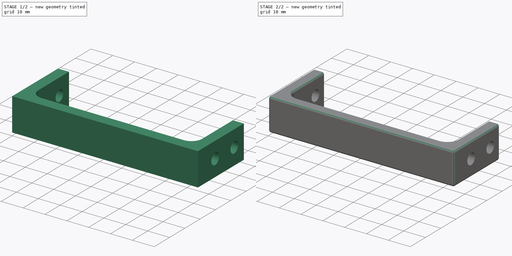
[diagram: build sequence overview — one tinted view per stage of 2, left to right]
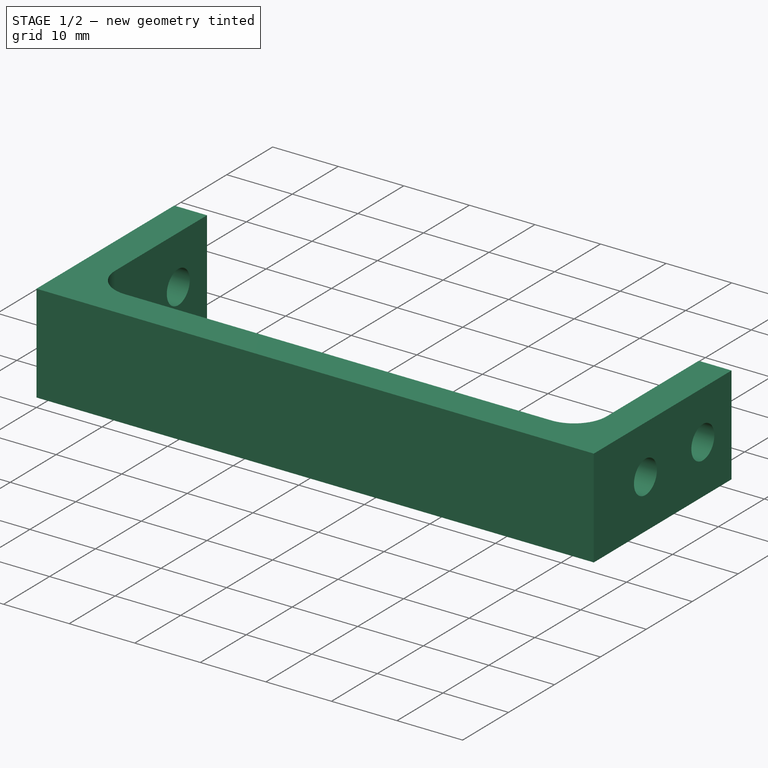
[diagram: stage 1 of 2 — iso view after this stage's code; geometry added in this stage tinted green]
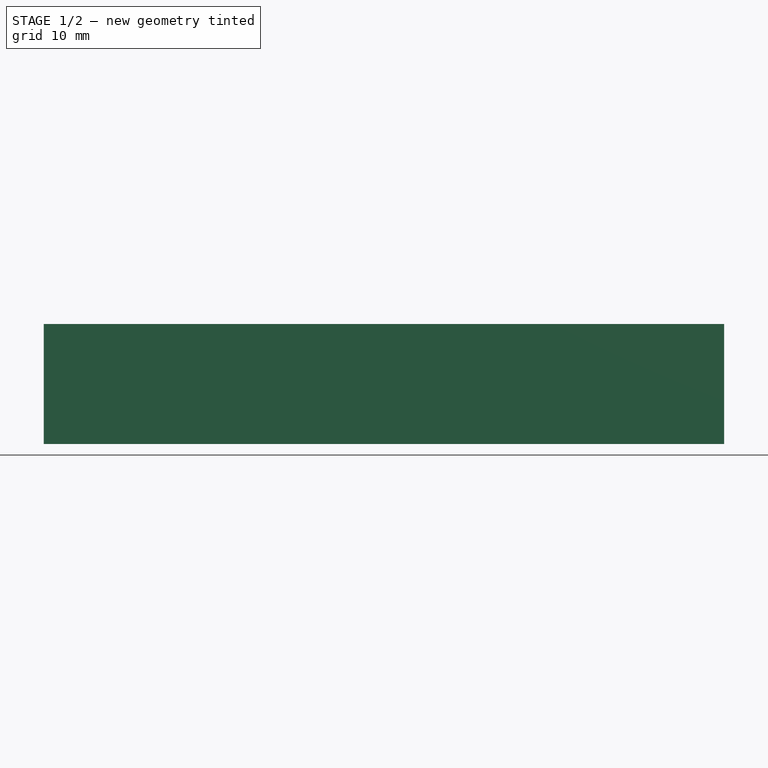
[diagram: stage 1 of 2 — front view after this stage's code; geometry added in this stage tinted green]
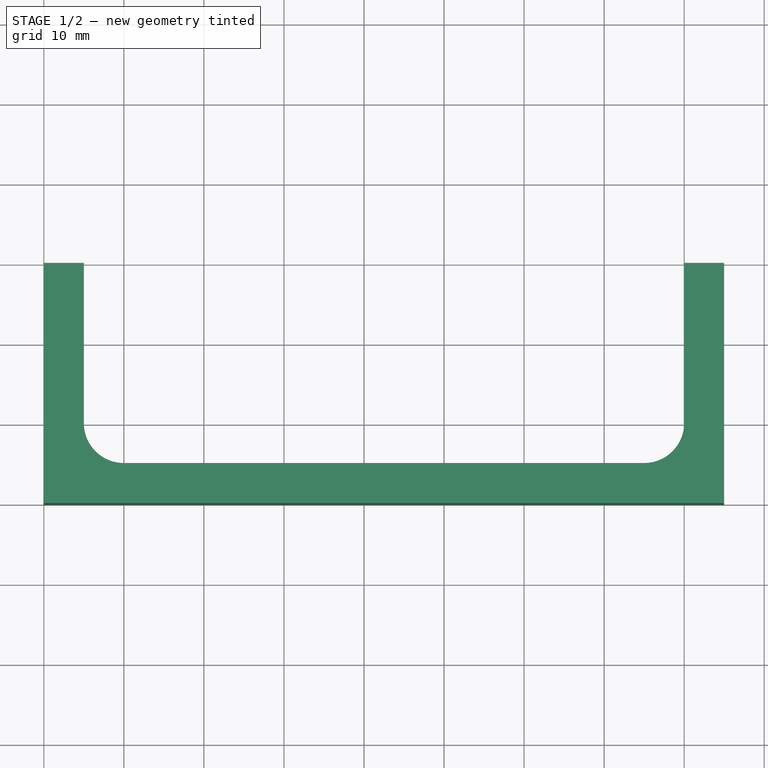
[diagram: stage 1 of 2 — top view after this stage's code; geometry added in this stage tinted green]
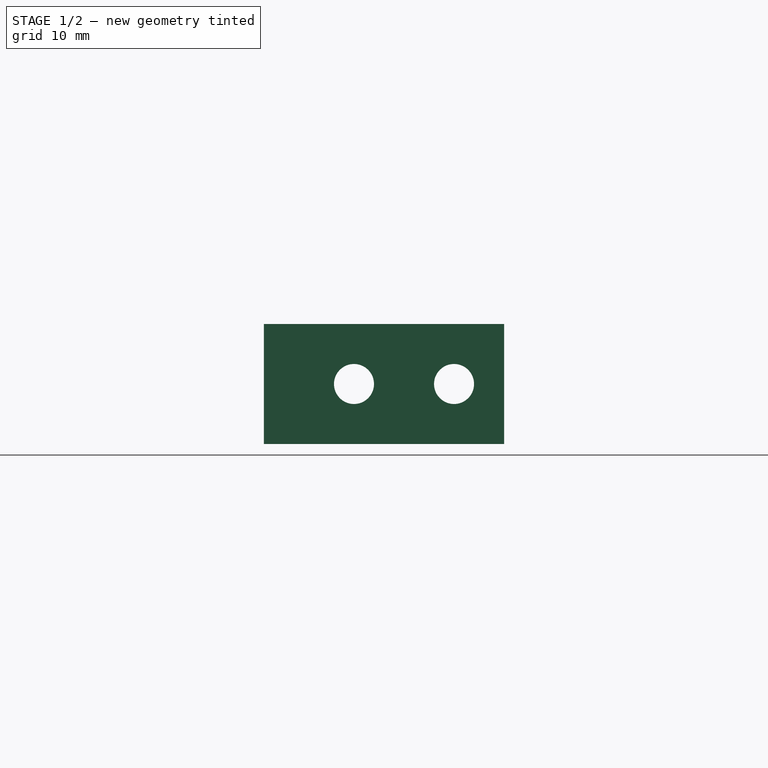
[diagram: stage 1 of 2 — right view after this stage's code; geometry added in this stage tinted green]
FCSTD DOCUMENT  (FreeCAD 0.20R29177 +426 (Git))
Label: ax1000holder
License: All rights reserved
LicenseURL: http://en.wikipedia.org/wiki/All_rights_reserved
objects: Sketcher::SketchObject×2, PartDesign::Pad×1, Spreadsheet::Sheet×1, PartDesign::Pocket×1, PartDesign::Fillet×1, PartDesign::Body×1
note: 9 computed .brp shape members not serialized (recipe doc carries the construction recipe); baked Part::Feature solids carry a one-line shape summary decoded from their .brp

FEATURE [Sketcher::SketchObject] Sketch
  FullyConstrained = true
  MapMode = 5
  Support = -> [XY_Plane]
  expr: Constraints[16] = Spreadsheet.handLen
  expr: Constraints[19] = Spreadsheet.thickness
  expr: Constraints[20] = Spreadsheet.cornerR
  expr: Constraints[21] = Spreadsheet.cornerR
  expr: Constraints[26] = Spreadsheet.totalSpacing + Spreadsheet.thickness
  expr: Constraints[31] = Spreadsheet.thickness
  sketch-geometry (12):
    g0: LineSegment StartX=85 StartY=30 StartZ=0 EndX=85 EndY=0 EndZ=0
    g1: LineSegment StartX=85 StartY=0 StartZ=0 EndX=0 EndY=0 EndZ=0
    g2: LineSegment StartX=0 StartY=0 StartZ=0 EndX=0 EndY=30 EndZ=0
    g3: LineSegment StartX=0 StartY=30 StartZ=0 EndX=5 EndY=30 EndZ=0
    g4: LineSegment StartX=5 StartY=30 StartZ=0 EndX=5 EndY=10 EndZ=0
    g5: LineSegment StartX=10 StartY=5 StartZ=0 EndX=75 EndY=5 EndZ=0
    g6: LineSegment StartX=80 StartY=10 StartZ=0 EndX=80 EndY=30 EndZ=0
    g7: LineSegment StartX=80 StartY=30 StartZ=0 EndX=85 EndY=30 EndZ=0
    g8: ArcOfCircle CenterX=10 CenterY=10 CenterZ=0 NormalX=0 NormalY=0 NormalZ=1 AngleXU=0 Radius=5 StartAngle=3.14159 EndAngle=4.71239
    g9: ArcOfCircle CenterX=75 CenterY=10 CenterZ=0 NormalX=0 NormalY=0 NormalZ=1 AngleXU=0 Radius=5 StartAngle=4.71239 EndAngle=6.28319
    g10: LineSegment StartX=5 StartY=10 StartZ=0 EndX=5 EndY=5 EndZ=0
    g11: LineSegment StartX=10 StartY=5 StartZ=0 EndX=5 EndY=5 EndZ=0
  constraints (33):
    c: Coincident(g0,g1)
    c: Coincident(g1,g2)
    c: Horizontal(g1)
    c: Vertical(g0)
    c: Vertical(g2)
    c: PointOnObject(g2,g-2)
    c: PointOnObject(g0,g-1)
    c: Coincident(g3,g2)
    c: Horizontal(g3)
    c: Coincident(g4,g3)
    c: Vertical(g4)
    c: Horizontal(g5)
    c: Vertical(g6)
    c: Coincident(g7,g6)
    c: Horizontal(g7)
    c: Coincident(g7,g0)
    c: DistanceY(g2,g2) = 30
    c: Equal(g0,g2)
    c: Equal(g3,g7)
    c: DistanceX(g3,g3) = 5
    c: Radius(g8) = 5
    c: Radius(g9) = 5
    c: Tangent(g4,g8) = -1.5708
    c: Tangent(g5,g8) = -1.5708
    c: Tangent(g5,g9) = -1.5708
    c: Tangent(g6,g9) = -1.5708
    c: DistanceX(g1,g1) = 85
    c: Coincident(g10,g4)
    c: Vertical(g10)
    c: Coincident(g11,g10)
    c: Coincident(g5,g11)
    c: DistanceY(g1,g10) = 5
    c: Horizontal(g11)
FEATURE [PartDesign::Pad] Pad
  Direction = (0,0,1)
  Length = 15
  Length2 = 10
  Profile = -> Sketch
  ReferenceAxis = -> Sketch [N_Axis]
  Type = 0
  expr: Length = Spreadsheet.pad
FEATURE [Spreadsheet::Sheet] Spreadsheet
  cells = A2=thickness; B2(thickness)=5; A3=totalSpacing; B3(totalSpacing)=80; A4=handLen; B4(handLen)=30; A5=pad; B5(pad)=15; A8=screwDist; B8(screwDist)==(handLen - thickness) / 2; A9=toFirstScrew; B9(toFirstScrew)==(handLen - screwDist) / 2 + thickness / 2; A12=screwHoleR; B12(screwHoleR)==5 / 2; A13=cornerR; B13(cornerR)=5
FEATURE [Sketcher::SketchObject] Sketch001
  FullyConstrained = true
  MapMode = 5
  Placement = pos=(0,0,0) rot=(0.57735,0.57735,0.57735;2.0944rad)
  Support = -> [YZ_Plane]
  expr: Constraints[1] = Spreadsheet.pad / 2
  expr: Constraints[2] = (Spreadsheet.handLen - Spreadsheet.thickness) / 2
  expr: Constraints[3] = Spreadsheet.toFirstScrew
  expr: Constraints[6] = Spreadsheet.screwHoleR
  expr: Constraints[7] = Spreadsheet.screwHoleR
  sketch-geometry (3):
    g0: LineSegment StartX=11.25 StartY=7.5 StartZ=0 EndX=23.75 EndY=7.5 EndZ=0
    g1: Circle CenterX=11.25 CenterY=7.5 CenterZ=0 NormalX=0 NormalY=0 NormalZ=1 AngleXU=0 Radius=2.5
    g2: Circle CenterX=23.75 CenterY=7.5 CenterZ=0 NormalX=0 NormalY=0 NormalZ=1 AngleXU=0 Radius=2.5
  constraints (8):
    c: Horizontal(g0)
    c: DistanceY(g-1,g0) = 7.5
    c: DistanceX(g0,g0) = 12.5
    c: DistanceX(g-1,g0) = 11.25
    c: Coincident(g1,g0)
    c: Coincident(g2,g0)
    c: Radius(g1) = 2.5
    c: Radius(g2) = 2.5
FEATURE [PartDesign::Pocket] Pocket
  BaseFeature = -> Pad
  Direction = (-1,2e-16,-3e-16)
  Length = 5
  Length2 = 5
  Midplane = true
  Profile = -> Sketch001
  ReferenceAxis = -> Sketch001 [N_Axis]
  Type = 1
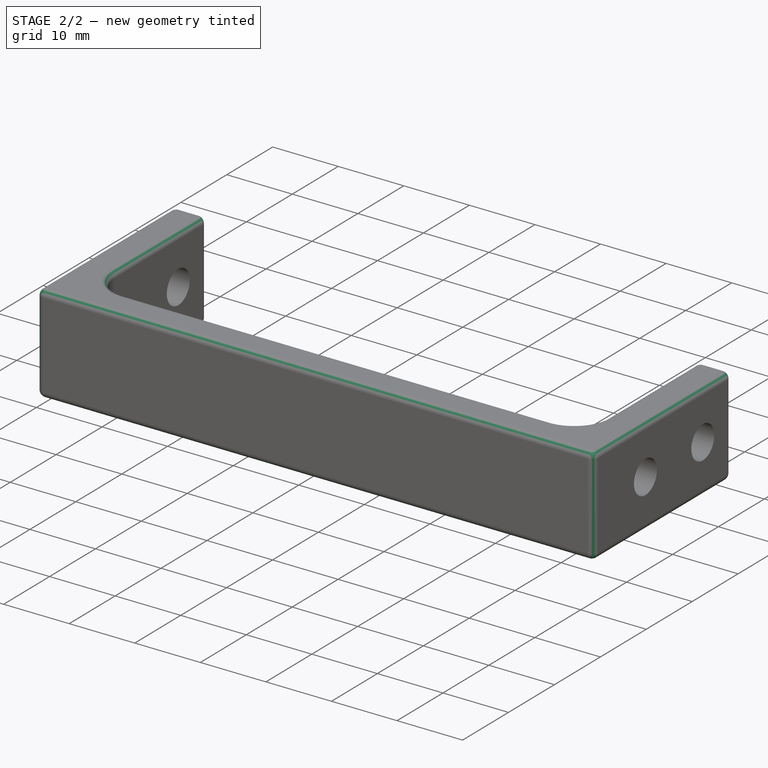
[diagram: stage 2 of 2 — iso view after this stage's code; geometry added in this stage tinted green]
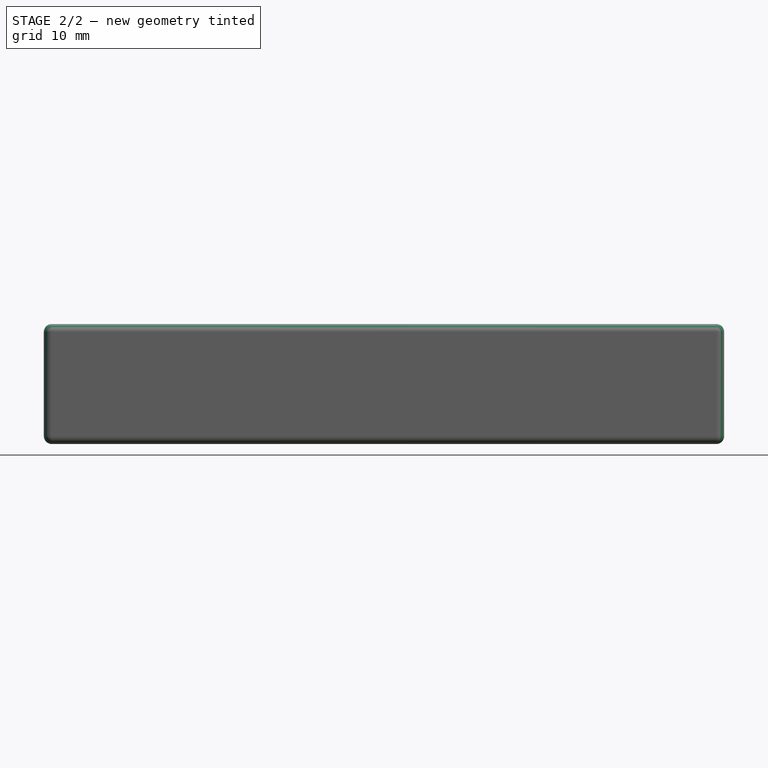
[diagram: stage 2 of 2 — front view after this stage's code; geometry added in this stage tinted green]
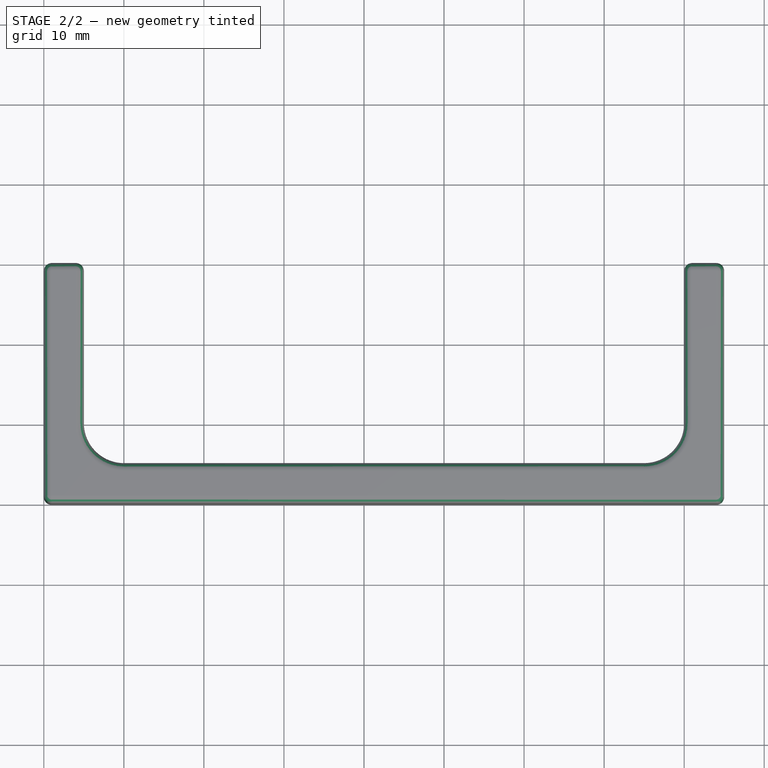
[diagram: stage 2 of 2 — top view after this stage's code; geometry added in this stage tinted green]
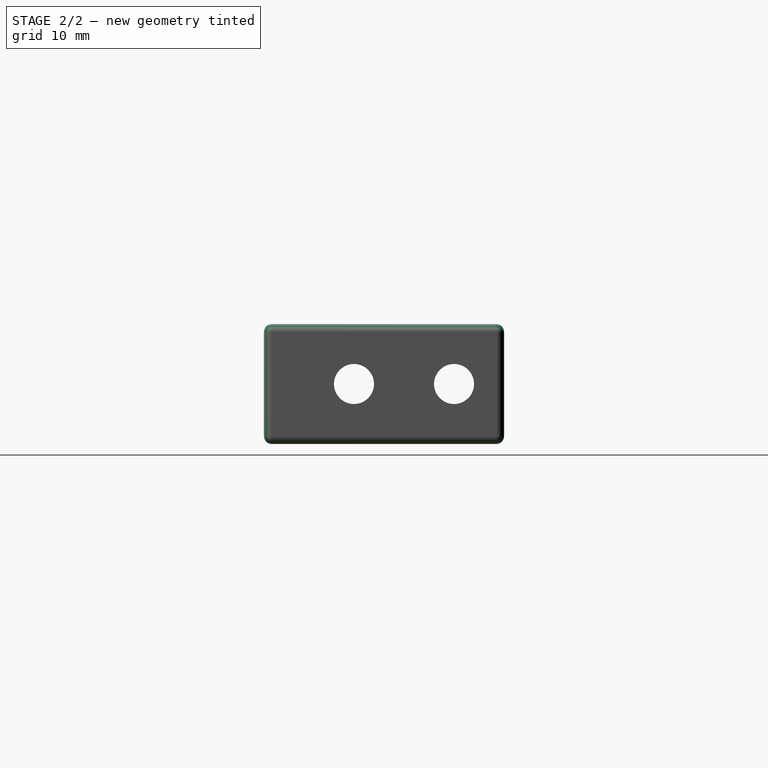
[diagram: stage 2 of 2 — right view after this stage's code; geometry added in this stage tinted green]
FEATURE [PartDesign::Fillet] Fillet
  Base = -> Pocket [Edge1,Face2,Edge4,Edge38,Edge35,Edge26,Edge18,Face5,Face4,Face3]
  BaseFeature = -> Pocket
  Radius = 1
  SupportTransform = false
  UseAllEdges = false
FEATURE [PartDesign::Body] Body
  Group = -> [Sketch,Pad,Sketch001,Pocket,Fillet]
  Origin = -> Origin
  Tip = -> Fillet
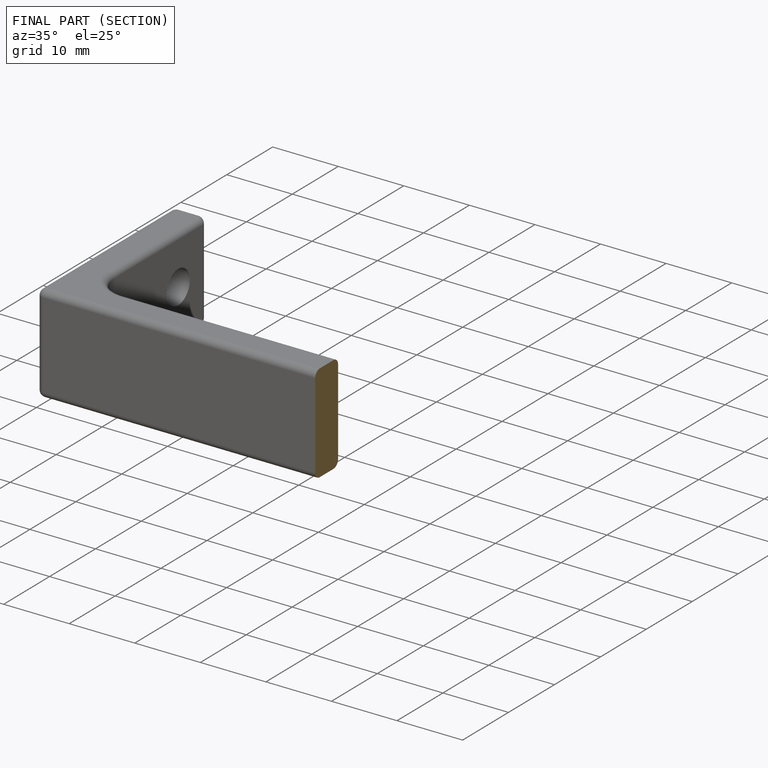
[diagram: finished part — half-section view (interior)]
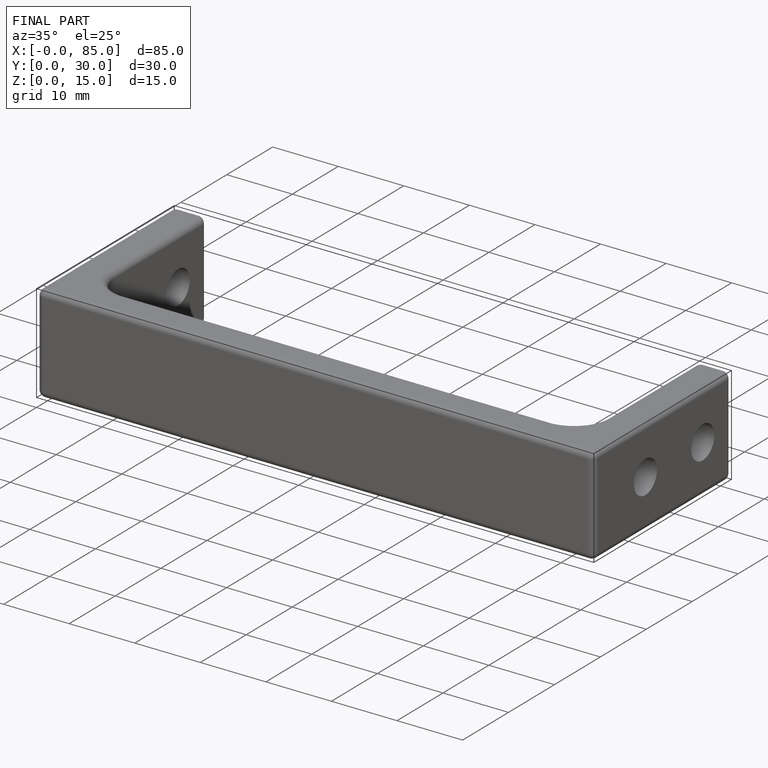
[diagram: finished part — iso view with bounding-box wireframe]
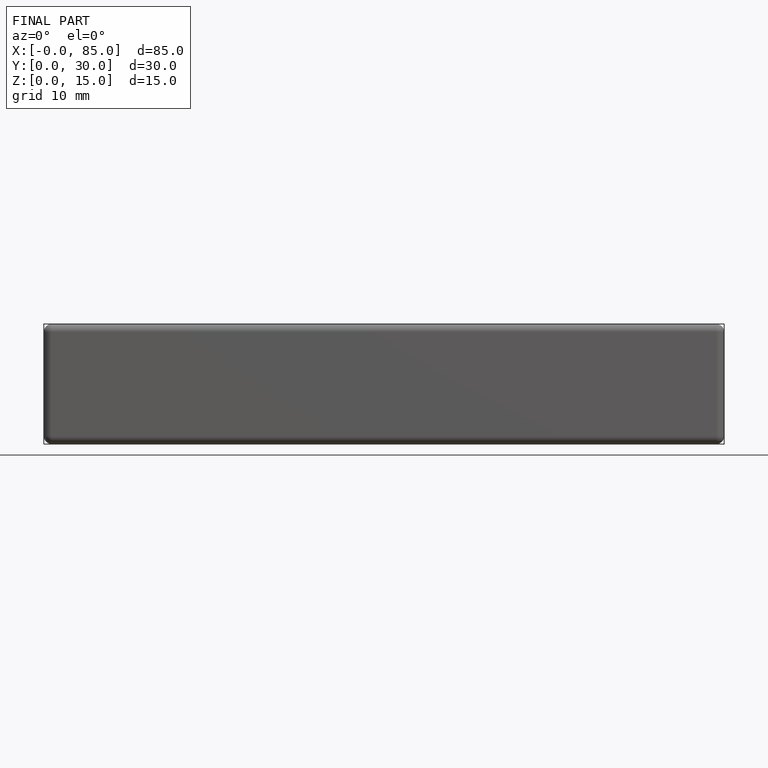
[diagram: finished part — front view with bounding-box wireframe]
